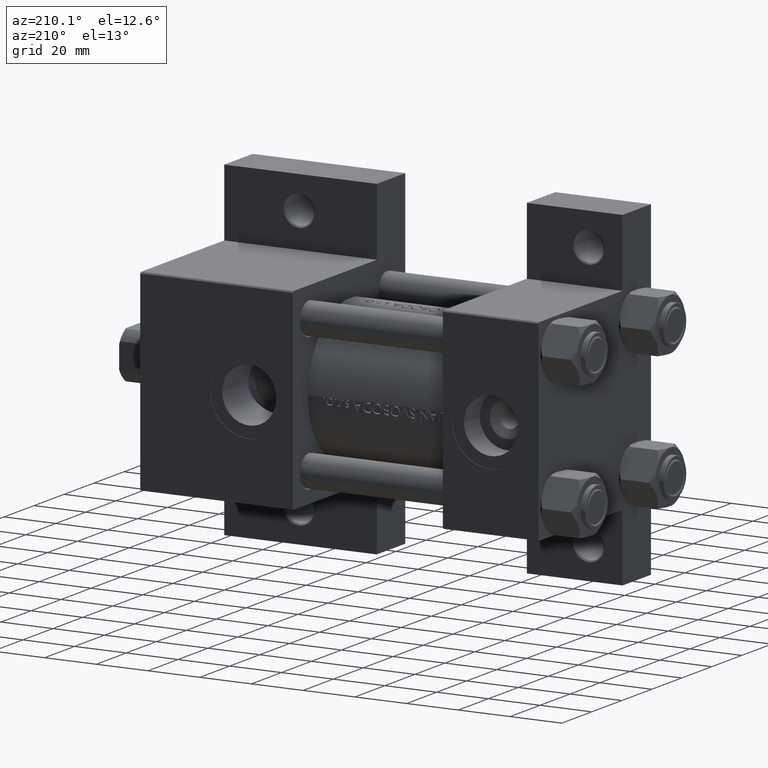
[diagram: clean part render]
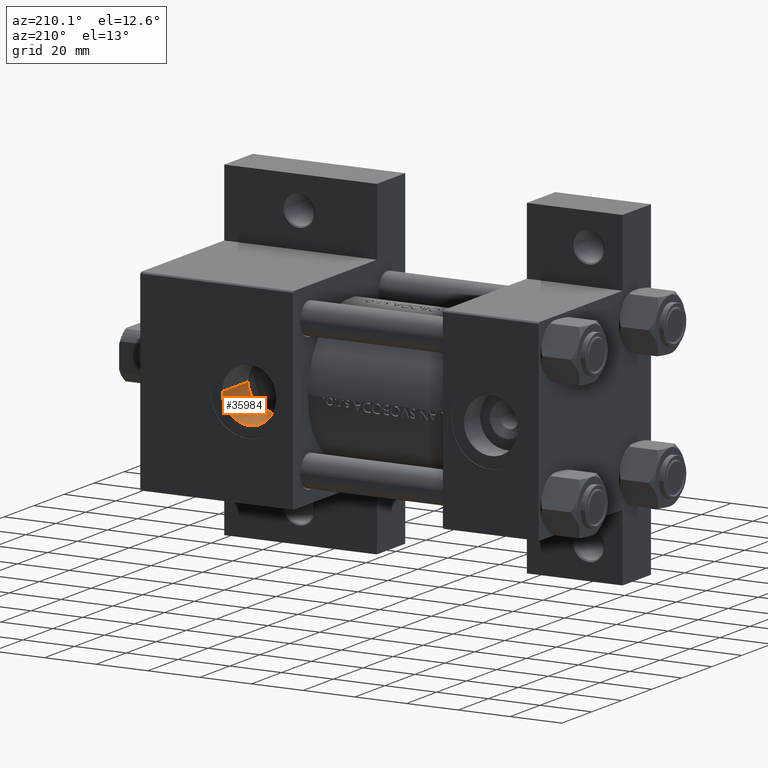
[diagram: same view with one face highlighted and labeled with its STEP entity id]
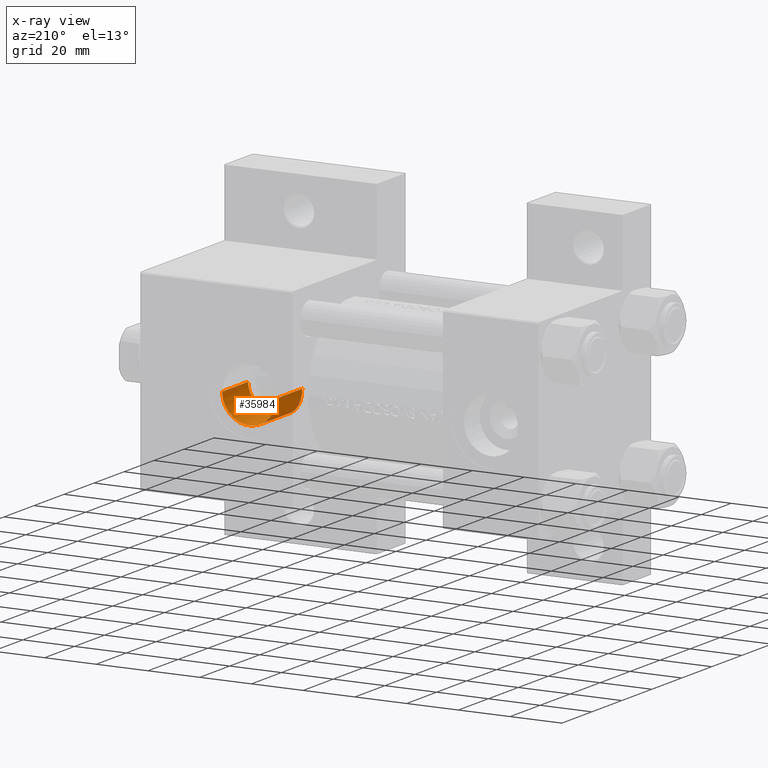
[diagram: x-ray of the same camera — body ghosted, the highlighted face saturated]
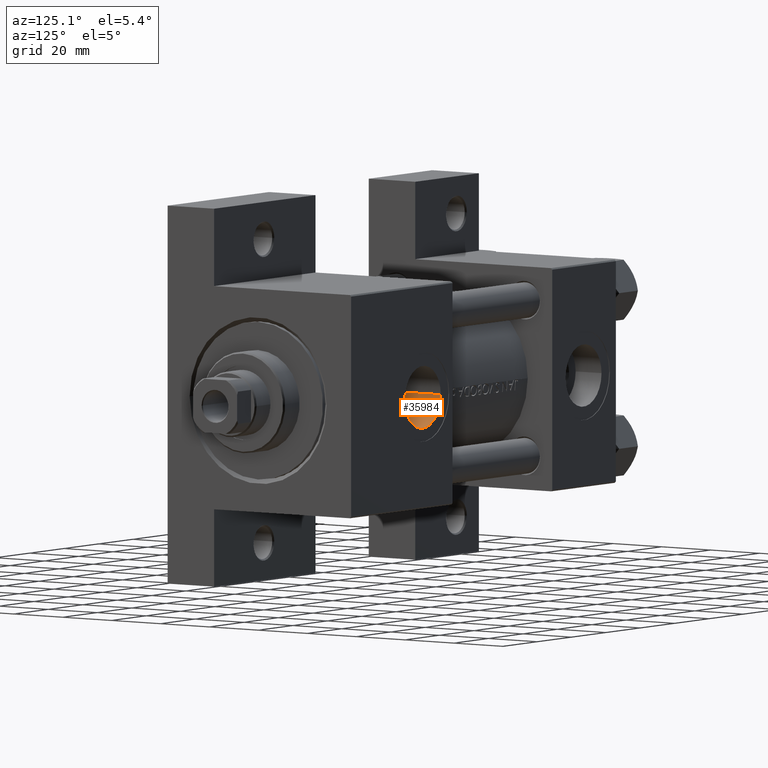
[diagram: same view with one face highlighted and labeled with its STEP entity id]
A machine part, auxiliary view. The second image highlights one B-rep face of the part: STEP entity #35984.
The next image is the same camera in x-ray: the body ghosted, the highlighted face saturated — about 0% of this face is hidden behind the body in this view.
A second angle (auxiliary view) of the same face is appended — the face is thin or edge-on in the first view.
In plain terms, the highlighted cylindrical surface (edge-blend (fillet) strip) has radius 10.48 mm, axis along (0, -1, 0).
Its self-contained STEP definition (entity closure, byte-faithful):
#334 = DIRECTION ( 'NONE',  ( -0.000000000000000000, -0.000000000000000000, -1.000000000000000000 ) ) ;
#1186 = CARTESIAN_POINT ( 'NONE',  ( 104.1344073689295442, 6.933755718105402366, 18.79375335859577945 ) ) ;
#1418 = CARTESIAN_POINT ( 'NONE',  ( 122.2039809949709621, 2.414784284089436461, 19.86018829921811957 ) ) ;
#1652 = CARTESIAN_POINT ( 'NONE',  ( 121.7963195694986211, 3.738835649269056205, 19.65872255796546852 ) ) ;
#1905 = CARTESIAN_POINT ( 'NONE',  ( 102.9281433422187888, 5.291159677655632443, 19.31417435353765555 ) ) ;
#2562 = LINE ( 'NONE', #5715, #39754 ) ;
#3215 = ORIENTED_EDGE ( 'NONE', *, *, #14822, .T. ) ;
#4567 = CARTESIAN_POINT ( 'NONE',  ( 106.7250863903656324, 9.081045908839906033, 17.88365106881857258 ) ) ;
#4805 = CARTESIAN_POINT ( 'NONE',  ( 114.7469934192376684, 10.11947292826133626, 17.32862250975704299 ) ) ;
#5041 = CARTESIAN_POINT ( 'NONE',  ( 101.5199999999999960, -8.522187221514314994E-15, 20.00000000000000000 ) ) ;
#5493 = EDGE_CURVE ( 'NONE', #10941, #40349, #2562, .T. ) ;
#5505 = CARTESIAN_POINT ( 'NONE',  ( 116.6856175630587984, 9.399358022566021376, 17.72067190218963262 ) ) ;
#5715 = CARTESIAN_POINT ( 'NONE',  ( 101.5199999999999960, -6.938893903907226011E-15, 60.29999999999998295 ) ) ;
#6534 = LINE ( 'NONE', #10617, #40126 ) ;
#7970 = CARTESIAN_POINT ( 'NONE',  ( 122.4800000000000040, -5.655464058400800522E-15, 37.29999999999998295 ) ) ;
#8593 = EDGE_CURVE ( 'NONE', #10941, #12206, #37540, .T. ) ;
#8650 = CARTESIAN_POINT ( 'NONE',  ( 120.3133438460494489, 6.417723730979731478, 18.97855006749640339 ) ) ;
#8891 = CARTESIAN_POINT ( 'NONE',  ( 122.4111999661127896, 1.387573566795220259, 19.96456553337858608 ) ) ;
#9041 = CARTESIAN_POINT ( 'NONE',  ( 101.5199999999999960, -8.522187221514314994E-15, 20.00000000000000000 ) ) ;
#10617 = CARTESIAN_POINT ( 'NONE',  ( 122.4800000000000040, -5.655464058400799734E-15, 60.29999999999998295 ) ) ;
#10941 = VERTEX_POINT ( 'NONE', #40625 ) ;
#12016 = CARTESIAN_POINT ( 'NONE',  ( 113.3898925283612868, 10.39333618499134992, 17.17003674431503768 ) ) ;
#12206 = VERTEX_POINT ( 'NONE', #7970 ) ;
#12247 = CARTESIAN_POINT ( 'NONE',  ( 118.3998192419224722, 8.305855936120723371, 18.24346718738526718 ) ) ;
#12485 = CARTESIAN_POINT ( 'NONE',  ( 122.4800000000000040, 2.510525976792046767E-15, 20.00000000000000000 ) ) ;
#12721 = CARTESIAN_POINT ( 'NONE',  ( 101.5905792072285152, 1.397808168755529268, 19.96366514614362941 ) ) ;
#12956 = CARTESIAN_POINT ( 'NONE',  ( 102.0867390608468952, 3.417436119877227174, 19.71594434548826058 ) ) ;
#13858 = AXIS2_PLACEMENT_3D ( 'NONE', #40883, #41598, #19730 ) ;
#14822 = EDGE_CURVE ( 'NONE', #40349, #22359, #31968, .T. ) ;
#15003 = ORIENTED_EDGE ( 'NONE', *, *, #5493, .T. ) ;
#15613 = CARTESIAN_POINT ( 'NONE',  ( 102.2055746244945738, 3.743983501781743328, 19.65779689679484221 ) ) ;
#15851 = CARTESIAN_POINT ( 'NONE',  ( 105.8804737050766107, 8.514500867498458803, 18.14931045191755032 ) ) ;
#16085 = CARTESIAN_POINT ( 'NONE',  ( 119.1715154115444193, 7.649352566110291463, 18.52110086963150337 ) ) ;
#16567 = CARTESIAN_POINT ( 'NONE',  ( 112.6923943345972532, 10.46297416512450162, 17.12889126461535128 ) ) ;
#16811 = AXIS2_PLACEMENT_3D ( 'NONE', #22463, #334, #33044 ) ;
#17221 = DIRECTION ( 'NONE',  ( 0.000000000000000000, 0.000000000000000000, -1.000000000000000000 ) ) ;
#18068 = DIRECTION ( 'NONE',  ( 0.000000000000000000, 0.000000000000000000, -1.000000000000000000 ) ) ;
#19216 = CARTESIAN_POINT ( 'NONE',  ( 112.3383151790434340, 10.48035382919965208, 17.11851820641091138 ) ) ;
#19461 = CARTESIAN_POINT ( 'NONE',  ( 117.2820573345585160, 9.076872237721246961, 17.88571804596834980 ) ) ;
#19698 = CARTESIAN_POINT ( 'NONE',  ( 121.9134797944147266, 3.416556018164091935, 19.71605419410972360 ) ) ;
#19730 = DIRECTION ( 'NONE',  ( -1.000000000000000000, 0.000000000000000000, 0.000000000000000000 ) ) ;
#19932 = CARTESIAN_POINT ( 'NONE',  ( 108.5827044152010075, 9.913257743980489423, 17.44410793545391414 ) ) ;
#20173 = CARTESIAN_POINT ( 'NONE',  ( 101.8817856378111628, 2.751972056903263741, 19.81723222319772404 ) ) ;
#21438 = EDGE_CURVE ( 'NONE', #12206, #22359, #6534, .T. ) ;
#22359 = VERTEX_POINT ( 'NONE', #36937 ) ;
#22463 = CARTESIAN_POINT ( 'NONE',  ( 112.0000000000000000, -6.938893903907226011E-15, 37.29999999999998295 ) ) ;
#22827 = CARTESIAN_POINT ( 'NONE',  ( 101.5200000000000102, 0.7059292743811345083, 19.99999999999998934 ) ) ;
#23067 = CARTESIAN_POINT ( 'NONE',  ( 102.6044737504641375, 4.693145010131121175, 19.46599966668495441 ) ) ;
#23311 = CARTESIAN_POINT ( 'NONE',  ( 121.0774436320738374, 5.281939122741830417, 19.31671541206549492 ) ) ;
#23549 = CARTESIAN_POINT ( 'NONE',  ( 109.5844666488367523, 10.20370056431730532, 17.28034809007779415 ) ) ;
#26680 = CARTESIAN_POINT ( 'NONE',  ( 101.7963906697739418, 2.415912636154256887, 19.86000321358038079 ) ) ;
#26912 = CARTESIAN_POINT ( 'NONE',  ( 119.8841991131332492, 6.936938536499984487, 18.79736706481581265 ) ) ;
#27152 = CARTESIAN_POINT ( 'NONE',  ( 104.8361938724689111, 7.656566108217144340, 18.51819379702216040 ) ) ;
#27305 = EDGE_LOOP ( 'NONE', ( #30445, #32138, #15003, #3215 ) ) ;
#27621 = CARTESIAN_POINT ( 'NONE',  ( 103.4994615249995888, 6.139005141183927705, 19.06143105420016326 ) ) ;
#30288 = CARTESIAN_POINT ( 'NONE',  ( 107.3192332810963592, 9.401270326070079619, 17.71963709424768041 ) ) ;
#30445 = ORIENTED_EDGE ( 'NONE', *, *, #21438, .F. ) ;
#30526 = CARTESIAN_POINT ( 'NONE',  ( 109.2453258533809333, 10.11742845580953443, 17.32978771997537493 ) ) ;
#31233 = CARTESIAN_POINT ( 'NONE',  ( 115.4073549067260274, 9.916634395335904628, 17.44223718521384470 ) ) ;
#31968 = B_SPLINE_CURVE_WITH_KNOTS ( 'NONE', 3,
 ( #5041, #22827, #12721, #26680, #20173, #12956, #15613, #23067, #1905, #27621, #42263, #1186, #37497, #27152, #41335, #33890, #15851, #4567, #30288, #44931, #19932, #30526, #23549, #34595, #41567, #19216, #16567, #12016, #37735, #38210, #4805, #31233, #42035, #5505, #19461, #34130, #12247, #45168, #16085, #26912, #8650, #23311, #37974, #1652, #19698, #34361, #1418, #8891, #45404, #12485 ),
 .UNSPECIFIED., .F., .F.,
 ( 4, 2, 2, 2, 2, 2, 2, 2, 2, 2, 2, 2, 2, 2, 2, 2, 2, 2, 2, 2, 2, 2, 2, 2, 4 ),
 ( 2.336479298790575875E-18, 0.002085371848011686405, 0.003128057772017527657, 0.004170743696023369342, 0.006256115544035068324, 0.007298801468040917381, 0.008341487392046766439, 0.009384173316052617231, 0.01042685924005846455, 0.01251223108807019563, 0.01355491701207607938, 0.01459760293608196140, 0.01668297478409377574, 0.01772566070809969765, 0.01876834663210562304, 0.01981103255611154496, 0.02085371848011746687, 0.02293909032812935581, 0.02398177625213530201, 0.02502446217614124127, 0.02710983402415310592, 0.02919520587216496363, 0.03023789179617089595, 0.03128057772017682481, 0.03336594956818868252 ),
 .UNSPECIFIED. ) ;
#32138 = ORIENTED_EDGE ( 'NONE', *, *, #8593, .F. ) ;
#33044 = DIRECTION ( 'NONE',  ( 1.000000000000000000, 0.000000000000000000, 0.000000000000000000 ) ) ;
#33890 = CARTESIAN_POINT ( 'NONE',  ( 105.6065573369533865, 8.310725173485080219, 18.24129753657672737 ) ) ;
#33919 = FACE_OUTER_BOUND ( 'NONE', #27305, .T. ) ;
#34130 = CARTESIAN_POINT ( 'NONE',  ( 118.1258991483475000, 8.509911541881283625, 18.15140651454456844 ) ) ;
#34361 = CARTESIAN_POINT ( 'NONE',  ( 122.1171069833620351, 2.755736371050359068, 19.81668327404118557 ) ) ;
#34595 = CARTESIAN_POINT ( 'NONE',  ( 110.6027042192149423, 10.40949522351232837, 17.16118746953340590 ) ) ;
#35984 = ADVANCED_FACE ( 'NONE', ( #33919 ), #44968, .F. ) ;
#36937 = CARTESIAN_POINT ( 'NONE',  ( 122.4800000000000040, 2.510525976792046767E-15, 20.00000000000000000 ) ) ;
#37497 = CARTESIAN_POINT ( 'NONE',  ( 104.3608080663192226, 7.182330360178248441, 18.70231315409300521 ) ) ;
#37540 = CIRCLE ( 'NONE', #16811, 10.48000000000000398 ) ;
#37735 = CARTESIAN_POINT ( 'NONE',  ( 113.7337807232017184, 10.34138286985940880, 17.20062314295812911 ) ) ;
#37974 = CARTESIAN_POINT ( 'NONE',  ( 121.4004974859918349, 4.682576587287047509, 19.46836060444810101 ) ) ;
#38210 = CARTESIAN_POINT ( 'NONE',  ( 114.4123314728801120, 10.20445256356848596, 17.27991583748154270 ) ) ;
#39754 = VECTOR ( 'NONE', #17221, 1000.000000000000000 ) ;
#40126 = VECTOR ( 'NONE', #18068, 1000.000000000000000 ) ;
#40349 = VERTEX_POINT ( 'NONE', #9041 ) ;
#40625 = CARTESIAN_POINT ( 'NONE',  ( 101.5199999999999960, -6.938893903907226011E-15, 37.29999999999998295 ) ) ;
#40883 = CARTESIAN_POINT ( 'NONE',  ( 112.0000000000000000, -6.938893903907226011E-15, 60.29999999999998295 ) ) ;
#41335 = CARTESIAN_POINT ( 'NONE',  ( 105.0851776230415453, 7.882226429758168784, 18.42550904926250865 ) ) ;
#41567 = CARTESIAN_POINT ( 'NONE',  ( 111.2910039798671988, 10.47927568230745443, 17.11915951098716704 ) ) ;
#41598 = DIRECTION ( 'NONE',  ( 0.000000000000000000, 0.000000000000000000, -1.000000000000000000 ) ) ;
#42035 = CARTESIAN_POINT ( 'NONE',  ( 115.7346670001018083, 9.797999703728088150, 17.50755135371406013 ) ) ;
#42263 = CARTESIAN_POINT ( 'NONE',  ( 103.7041966693601154, 6.412812401408074514, 18.97310258086861978 ) ) ;
#44931 = CARTESIAN_POINT ( 'NONE',  ( 108.2605295482912595, 9.796046444661111963, 17.50860180445792480 ) ) ;
#44968 = CYLINDRICAL_SURFACE ( 'NONE', #13858, 10.48000000000000398 ) ;
#45168 = CARTESIAN_POINT ( 'NONE',  ( 118.9223547581159721, 7.875654497479071203, 18.42825589621287463 ) ) ;
#45404 = CARTESIAN_POINT ( 'NONE',  ( 122.4800000000000466, 0.6967823640873020974, 19.99999999999999645 ) ) ;